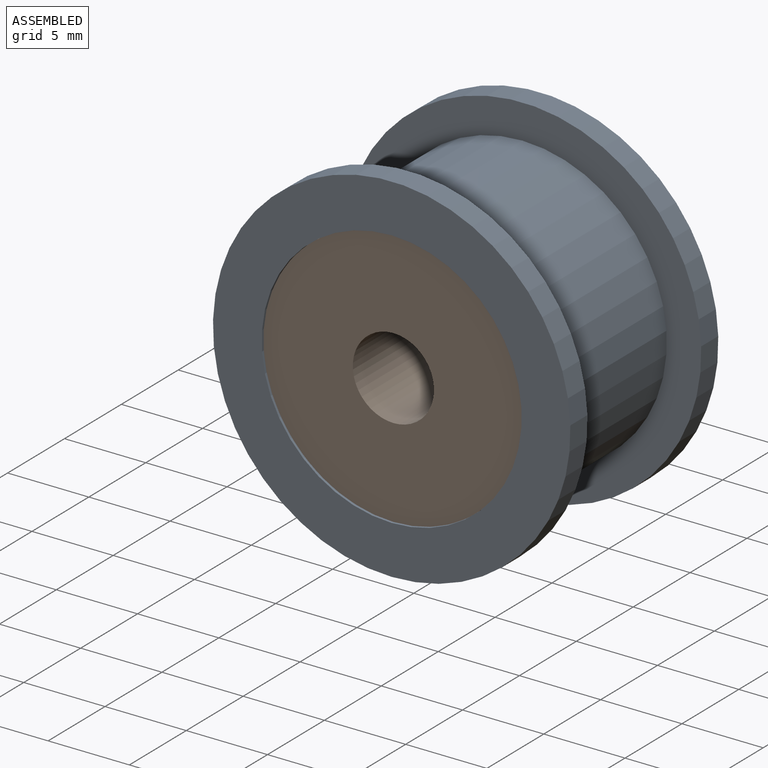
[diagram: assembled view]
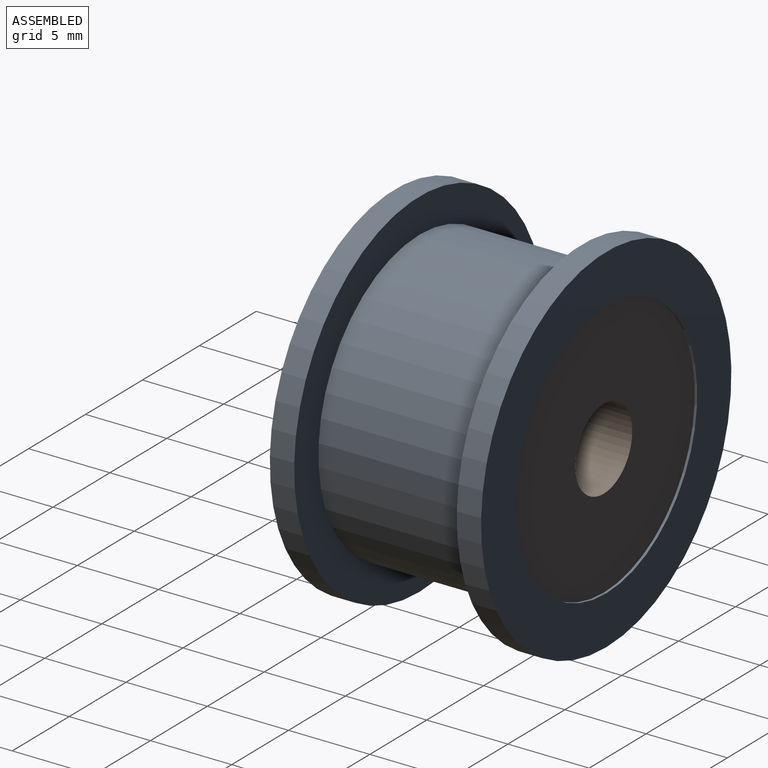
[diagram: assembled view, second angle]
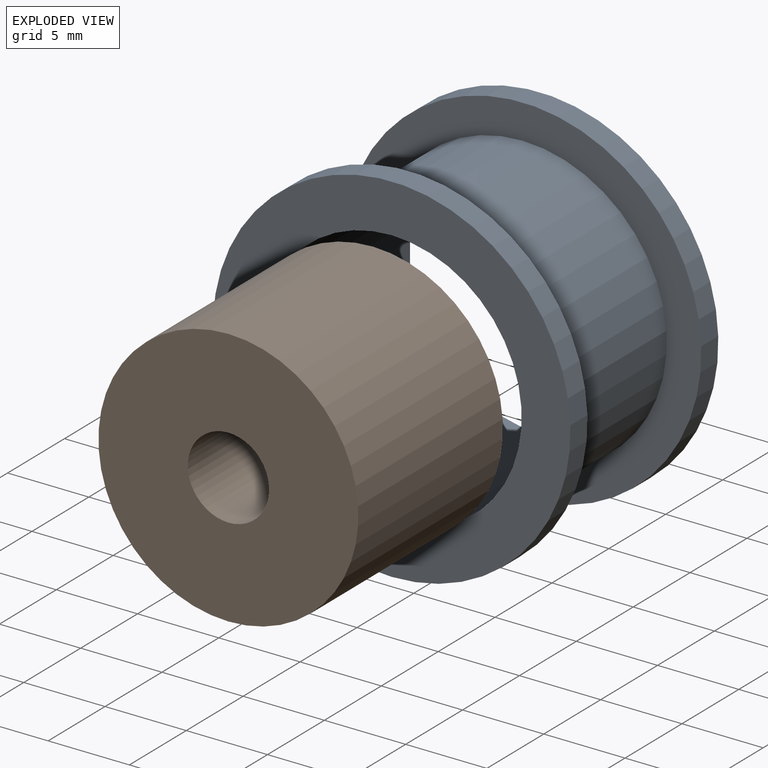
[diagram: exploded view]
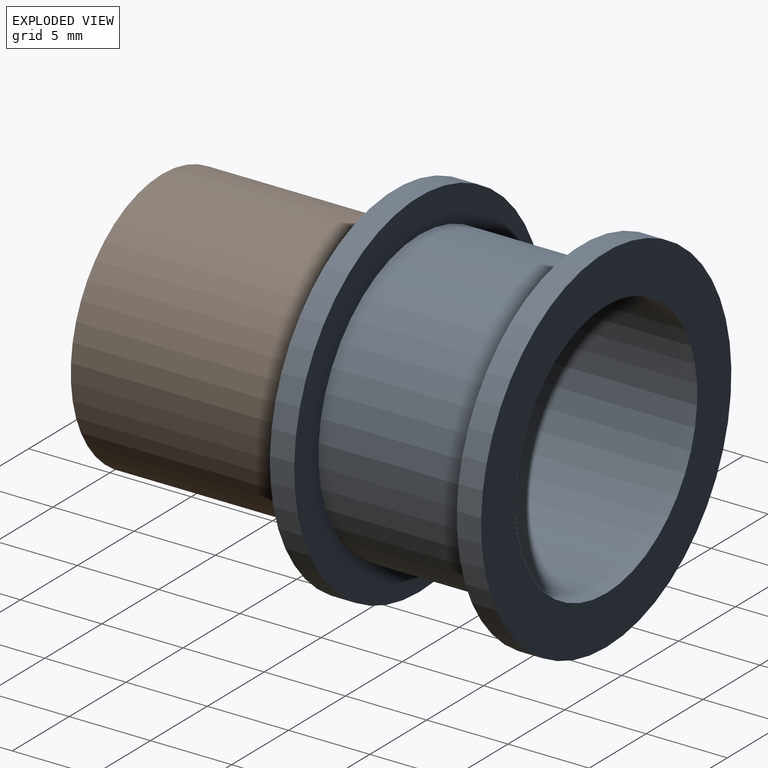
[diagram: exploded view, second angle]
ASSEMBLY  parts=2 mates=2
PART A: 8 faces, bbox 22x13x22 mm
  f0: plane 22x22mm, normal (0,-1,0), area 179.1mm2, adj f1,f7
  f1: cylinder r=8mm len=16mm, axis (0,-1,0), area 653.5mm2, adj f0,f2
  f2: plane 22x22mm, normal (0,1,0), area 179.1mm2, adj f1,f3
  f3: cylinder r=11mm len=22mm, axis (0,-1,0), area 103.7mm2, adj f2,f4
  f4: plane 22x22mm, normal (0,-1,0), area 132.7mm2, adj f3,f5
  f5: cylinder r=8.88mm len=17.75mm, axis (0,-1,0), area 557.6mm2, adj f4,f6
  f6: plane 22x22mm, normal (0,1,0), area 132.7mm2, adj f5,f7
  f7: cylinder r=11mm len=22mm, axis (0,-1,0), area 103.7mm2, adj f0,f6
PART B: 4 faces, bbox 16x12.7x16 mm
  f0: cylinder r=2.5mm len=12.7mm, axis (0,-1,0), area 199.5mm2, adj f1,f3
  f1: plane 16x16mm, normal (0,1,0), area 181.4mm2, adj f0,f2
  f2: cylinder r=8mm len=16mm, axis (0,-1,0), area 638.4mm2, adj f1,f3
  f3: plane 16x16mm, normal (0,-1,0), area 181.4mm2, adj f0,f2
PLACE A t=(-16.41,1.56,26.08)mm
PLACE B t=(-16.41,1.56,26.08)mm
MATE cylindrical B.f0 <-> A.f1  axis (0,-1,0) through (-16.41,7.91,26.08)mm
MATE planar A.f1 <-> B.f0  axis (0,1,0) through (-16.41,8.06,26.08)mm
